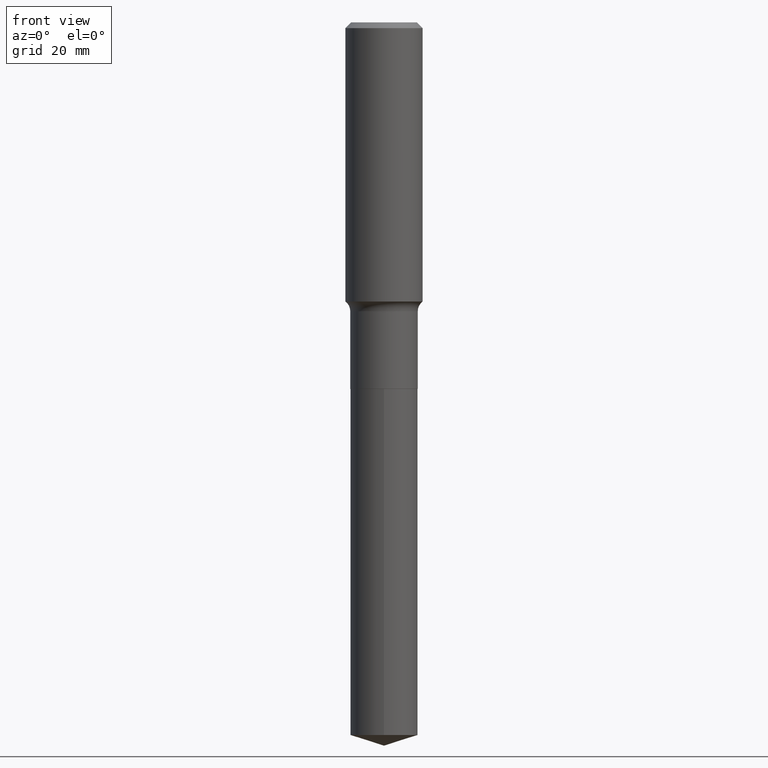
[diagram: clean part render]
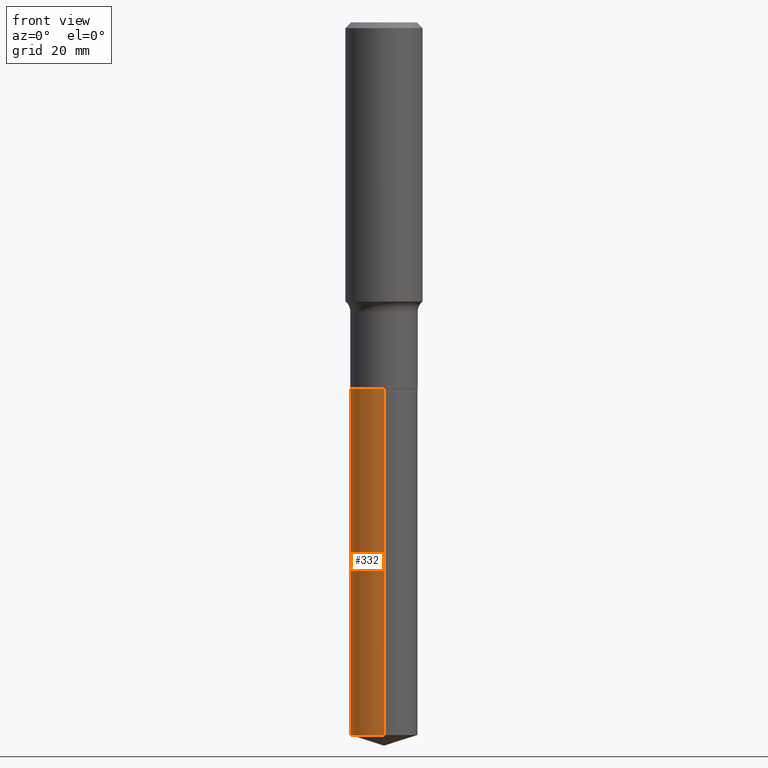
[diagram: same view with one face highlighted and labeled with its STEP entity id]
A machine part, front view. The second image highlights one B-rep face of the part: STEP entity #332.
In plain terms, the highlighted cylindrical surface (edge-blend (fillet) strip) has radius 5.5562 mm, axis along (-0, 0, 1).
Its self-contained STEP definition (entity closure, byte-faithful):
#1 = VERTEX_POINT ( 'NONE', #12 ) ;
#12 = CARTESIAN_POINT ( 'NONE',  ( -1.527523085743812467E-15, -0.2187500000000082989, -2.374999999999999556 ) ) ;
#30 = CARTESIAN_POINT ( 'NONE',  ( 5.807988414689700538E-29, -8.292268179752471696E-15, -2.375000000000000000 ) ) ;
#32 = CARTESIAN_POINT ( 'NONE',  ( 1.554312234475331569E-15, 0.2187499999999838463, -4.618528389932723854 ) ) ;
#38 = FACE_OUTER_BOUND ( 'NONE', #357, .T. ) ;
#49 = CIRCLE ( 'NONE', #466, 0.2187500000000000000 ) ;
#56 = VERTEX_POINT ( 'NONE', #430 ) ;
#69 = DIRECTION ( 'NONE',  ( -6.982962677686265133E-15, -1.000000000000000000, 3.746534391310989557E-15 ) ) ;
#95 = EDGE_CURVE ( 'NONE', #301, #1, #169, .T. ) ;
#114 = DIRECTION ( 'NONE',  ( -2.445327369194012178E-29, 3.491683884664529466E-15, 1.000000000000000000 ) ) ;
#144 = VECTOR ( 'NONE', #476, 39.37007874015748143 ) ;
#169 = LINE ( 'NONE', #315, #144 ) ;
#288 = ORIENTED_EDGE ( 'NONE', *, *, #412, .T. ) ;
#293 = DIRECTION ( 'NONE',  ( -2.445327369194011898E-29, 3.491683884664529466E-15, 1.000000000000000000 ) ) ;
#297 = DIRECTION ( 'NONE',  ( -2.445327369194011898E-29, 3.491683884664529466E-15, 1.000000000000000000 ) ) ;
#299 = CARTESIAN_POINT ( 'NONE',  ( 1.554312234475276743E-15, 0.2187499999999917011, -2.375000000000000888 ) ) ;
#301 = VERTEX_POINT ( 'NONE', #334 ) ;
#315 = CARTESIAN_POINT ( 'NONE',  ( -1.527523085743812467E-15, -0.2187500000000082989, -2.374999999999999556 ) ) ;
#318 = DIRECTION ( 'NONE',  ( -6.982962677686265133E-15, -1.000000000000000000, 2.497689594207326371E-15 ) ) ;
#322 = ORIENTED_EDGE ( 'NONE', *, *, #348, .F. ) ;
#332 = ADVANCED_FACE ( 'NONE', ( #38 ), #409, .T. ) ;
#334 = CARTESIAN_POINT ( 'NONE',  ( -1.527523085743757444E-15, -0.2187500000000160705, -4.618528389932722966 ) ) ;
#341 = AXIS2_PLACEMENT_3D ( 'NONE', #30, #293, #69 ) ;
#348 = EDGE_CURVE ( 'NONE', #56, #1, #49, .T. ) ;
#357 = EDGE_LOOP ( 'NONE', ( #416, #288, #389, #322 ) ) ;
#370 = AXIS2_PLACEMENT_3D ( 'NONE', #486, #463, #318 ) ;
#374 = CIRCLE ( 'NONE', #370, 0.2187500000000000000 ) ;
#386 = VERTEX_POINT ( 'NONE', #32 ) ;
#389 = ORIENTED_EDGE ( 'NONE', *, *, #95, .T. ) ;
#392 = EDGE_CURVE ( 'NONE', #386, #56, #408, .T. ) ;
#408 = LINE ( 'NONE', #299, #411 ) ;
#409 = CYLINDRICAL_SURFACE ( 'NONE', #341, 0.2187500000000000000 ) ;
#411 = VECTOR ( 'NONE', #114, 39.37007874015748143 ) ;
#412 = EDGE_CURVE ( 'NONE', #386, #301, #374, .T. ) ;
#416 = ORIENTED_EDGE ( 'NONE', *, *, #392, .F. ) ;
#430 = CARTESIAN_POINT ( 'NONE',  ( 1.554312234475331964E-15, 0.2187499999999917011, -2.375000000000000888 ) ) ;
#455 = DIRECTION ( 'NONE',  ( -6.982962677686265133E-15, -1.000000000000000000, 3.746534391310989557E-15 ) ) ;
#463 = DIRECTION ( 'NONE',  ( -2.445327369194011898E-29, 3.491683884664529466E-15, 1.000000000000000000 ) ) ;
#466 = AXIS2_PLACEMENT_3D ( 'NONE', #492, #297, #455 ) ;
#476 = DIRECTION ( 'NONE',  ( -2.445327369194012178E-29, 3.491683884664529466E-15, 1.000000000000000000 ) ) ;
#486 = CARTESIAN_POINT ( 'NONE',  ( 1.129414979015596135E-28, -1.612596010366791747E-14, -4.618528389932722966 ) ) ;
#492 = CARTESIAN_POINT ( 'NONE',  ( 5.807988414689700538E-29, -8.292268179752471696E-15, -2.375000000000000000 ) ) ;